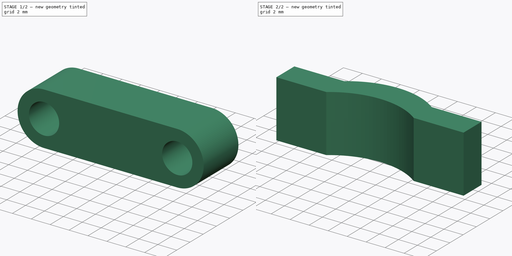
[diagram: build sequence overview — one tinted view per stage of 2, left to right]
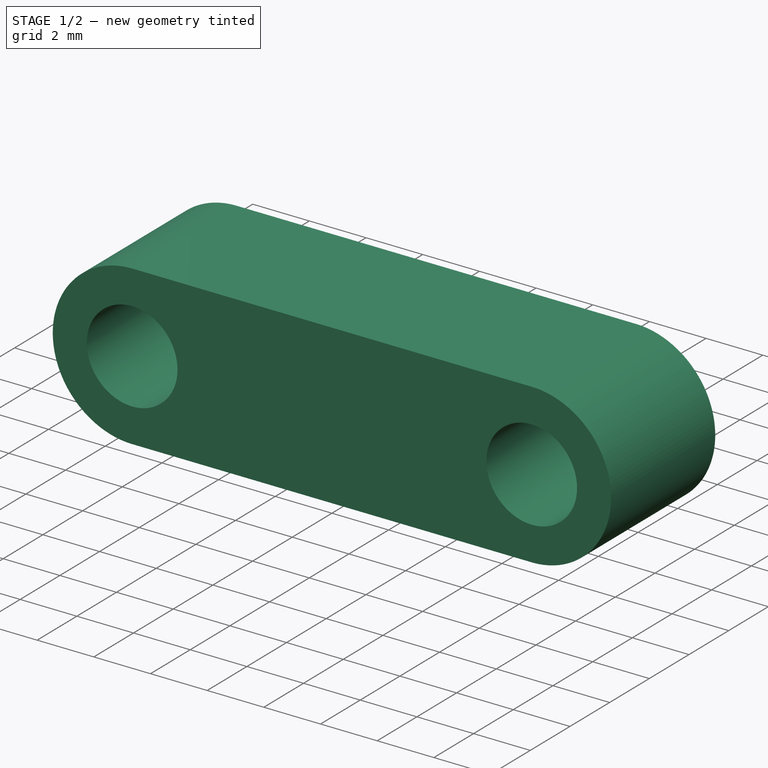
[diagram: stage 1 of 2 — iso view after this stage's code; geometry added in this stage tinted green]
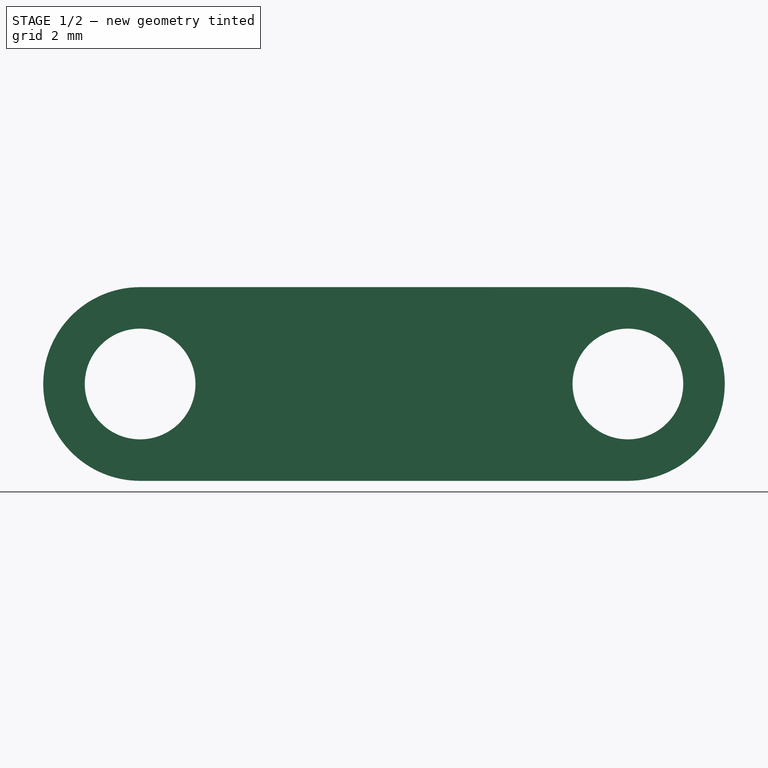
[diagram: stage 1 of 2 — front view after this stage's code; geometry added in this stage tinted green]
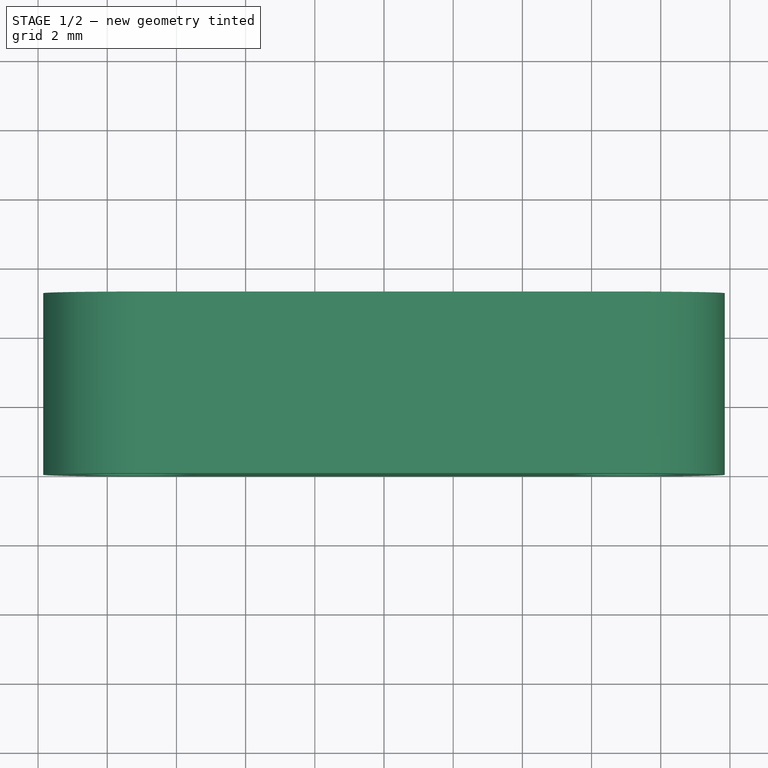
[diagram: stage 1 of 2 — top view after this stage's code; geometry added in this stage tinted green]
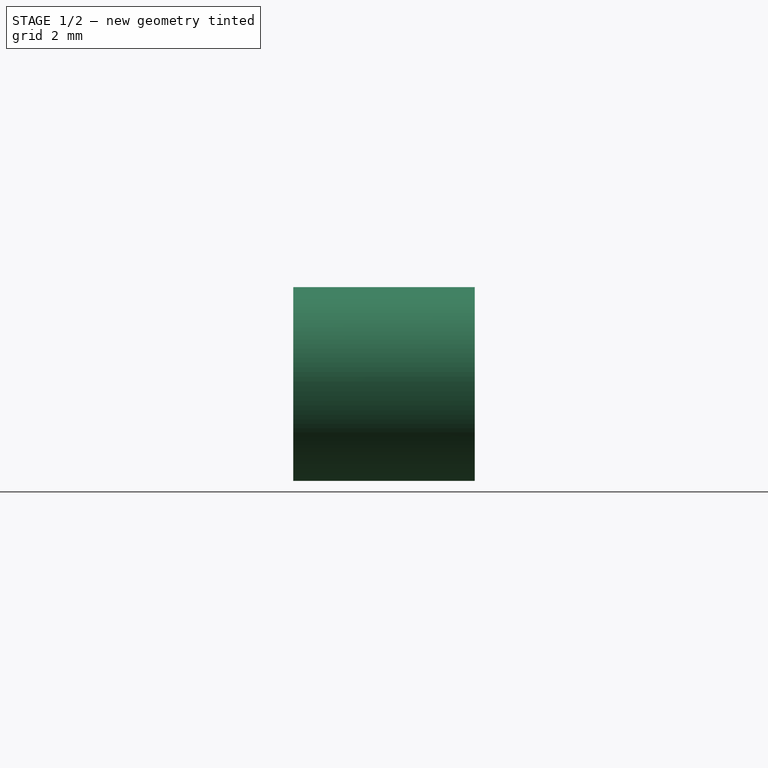
[diagram: stage 1 of 2 — right view after this stage's code; geometry added in this stage tinted green]
FCSTD DOCUMENT  (FreeCAD 1.0R39319 (Git))
Label: ZugentlastungKAZU_0442
License: All rights reserved
objects: Sketcher::SketchObject×2, PartDesign::Pad×2, PartDesign::Boolean×1, PartDesign::Body×1
note: 13 computed .brp shape members not serialized (recipe doc carries the construction recipe); baked Part::Feature solids carry a one-line shape summary decoded from their .brp

FEATURE [Sketcher::SketchObject] Sketch
  ArcFitTolerance = 1e-06
  AttachmentSupport = -> [XZ_Plane]
  FullyConstrained = true
  MakeInternals = false
  MapMode = 5
  Placement = pos=(0,0,0) rot=(1,0,0;1.5708rad)
  expr: Constraints[10] = .Constraints.Dia / 2 + 1.2 mm
  expr: Constraints[12] = .Constraints.Dia + 10.9 mm
  sketch-geometry (6):
    g0: ArcOfCircle CenterX=-7.05 CenterY=-1.6022e-12 CenterZ=0 NormalX=0 NormalY=0 NormalZ=1 AngleXU=0 Radius=2.8 StartAngle=1.5708 EndAngle=4.71239
    g1: ArcOfCircle CenterX=7.05 CenterY=-2.3269e-12 CenterZ=0 NormalX=0 NormalY=0 NormalZ=1 AngleXU=0 Radius=2.8 StartAngle=4.71239 EndAngle=7.85398
    g2: LineSegment StartX=-7.05 StartY=2.8 StartZ=0 EndX=7.05 EndY=2.8 EndZ=0
    g3: LineSegment StartX=-7.05 StartY=-2.8 StartZ=0 EndX=7.05 EndY=-2.8 EndZ=0
    g4: Circle CenterX=-7.05 CenterY=-1.6022e-12 CenterZ=0 NormalX=0 NormalY=0 NormalZ=1 AngleXU=0 Radius=1.6
    g5: Circle CenterX=7.05 CenterY=2.0986e-12 CenterZ=0 NormalX=0 NormalY=0 NormalZ=1 AngleXU=0 Radius=1.6
  constraints (13):
    c: Tangent(g0,g2) = 1.5708
    c: Tangent(g0,g3) = -1.5708
    c: Tangent(g1,g2) = 1.5708
    c: Tangent(g1,g3) = -1.5708
    c: Equal(g0,g1)
    c: Horizontal(g2)
    c: Symmetric(g0,g1,g-1)
    c: Equal(g4,g5)
    c: Diameter(g4) = 3.2  'Dia'
    c: Symmetric(g4,g5,g-1)
    c: Radius(g0) = 2.8
    c: Coincident(g4,g0)
    c: DistanceX(g0,g1) = 14.1
FEATURE [PartDesign::Pad] Pad
  Direction = (0,-1,2e-16)
  Length = 5.25
  Length2 = 10
  Placement = pos=(0,0,0) rot=(1,0,0;1.5708rad)
  Profile = -> Sketch
  ReferenceAxis = -> Sketch [N_Axis]
  Reversed = true
  Suppressed = false
  Type = 0
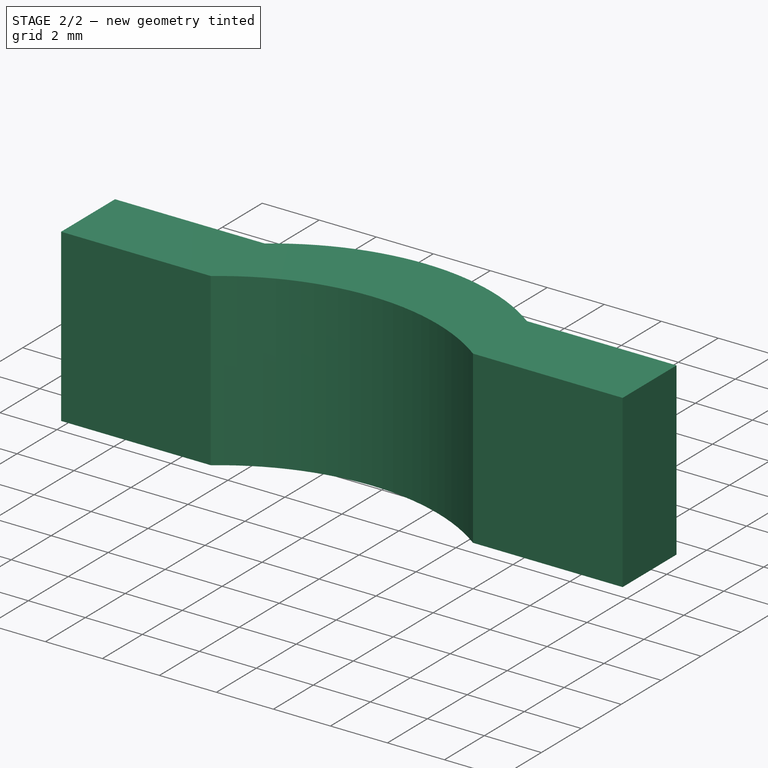
[diagram: stage 2 of 2 — iso view after this stage's code; geometry added in this stage tinted green]
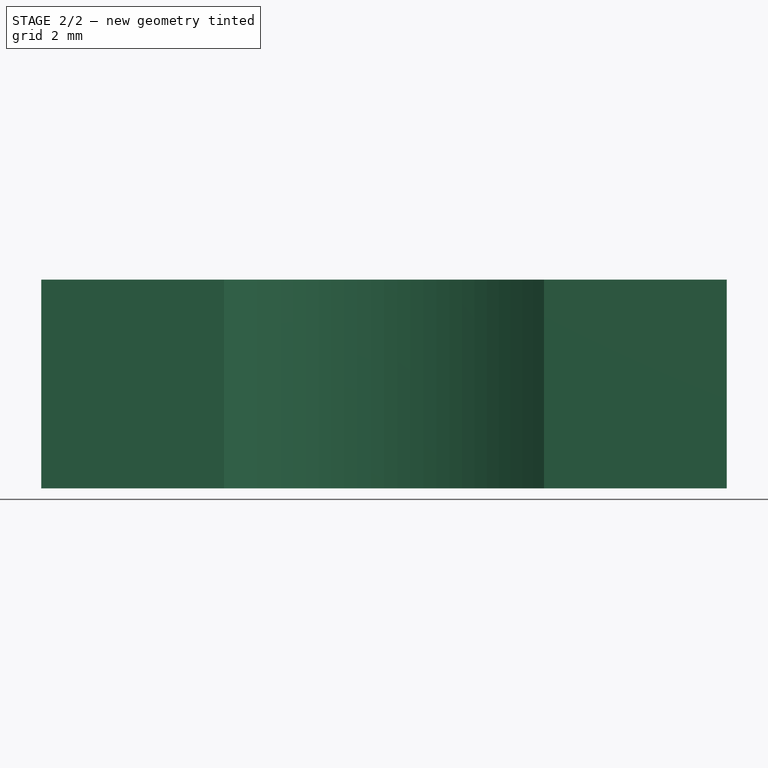
[diagram: stage 2 of 2 — front view after this stage's code; geometry added in this stage tinted green]
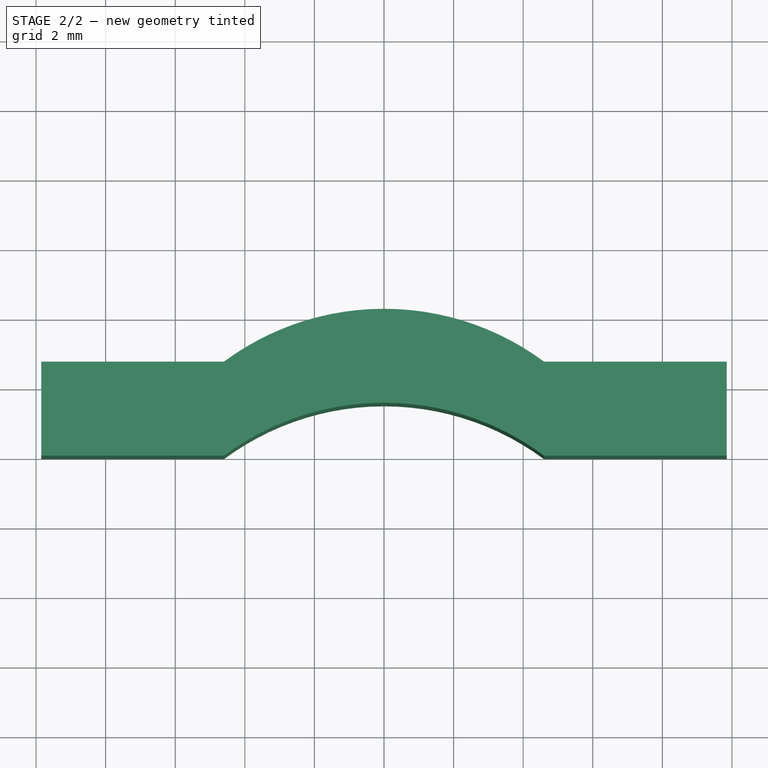
[diagram: stage 2 of 2 — top view after this stage's code; geometry added in this stage tinted green]
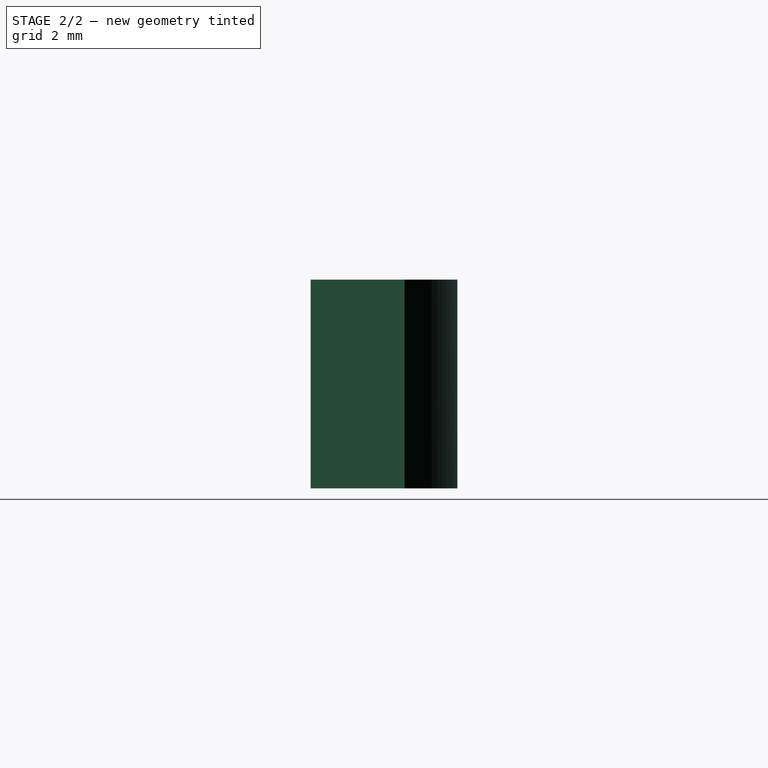
[diagram: stage 2 of 2 — right view after this stage's code; geometry added in this stage tinted green]
FEATURE [Sketcher::SketchObject] Sketch001
  ArcFitTolerance = 1e-06
  AttachmentSupport = -> [XY_Plane]
  ExternalGeometry = -> [Pad]
  FullyConstrained = true
  MakeInternals = false
  MapMode = 5
  expr: Constraints[19] = .Constraints.Width
  sketch-geometry (8):
    g0: LineSegment StartX=-9.85 StartY=-1.5161e-12 StartZ=0 EndX=-4.6 EndY=-7.02e-14 EndZ=0
    g1: ArcOfCircle CenterX=1.062e-13 CenterY=-6.2 CenterZ=0 NormalX=0 NormalY=0 NormalZ=1 AngleXU=0 Radius=7.7201 StartAngle=0.932477 EndAngle=2.20912
    g2: LineSegment StartX=4.6 StartY=-7.02e-14 StartZ=0 EndX=9.85 EndY=-7.02e-14 EndZ=0
    g3: LineSegment StartX=9.85 StartY=-7.02e-14 StartZ=0 EndX=9.85 EndY=2.7 EndZ=0
    g4: LineSegment StartX=9.85 StartY=2.7 StartZ=0 EndX=4.6 EndY=2.7 EndZ=0
    g5: ArcOfCircle CenterX=-1.254e-13 CenterY=-3.5 CenterZ=0 NormalX=0 NormalY=0 NormalZ=1 AngleXU=0 Radius=7.7201 StartAngle=0.932477 EndAngle=2.20912
    g6: LineSegment StartX=-4.6 StartY=2.7 StartZ=0 EndX=-9.85 EndY=2.7 EndZ=0
    g7: LineSegment StartX=-9.85 StartY=2.7 StartZ=0 EndX=-9.85 EndY=-1.5161e-12 EndZ=0
  constraints (22):
    c: Coincident(g-3,g0)
    c: Perpendicular(g2,g3) = 1.5708
    c: Perpendicular(g3,g4) = 1.5708
    c: Coincident(g5,g6)
    c: Coincident(g6,g7)
    c: Coincident(g7,g0)
    c: Vertical(g7)
    c: Coincident(g4,g5)
    c: Coincident(g2,g-4)
    c: Coincident(g0,g1)
    c: Horizontal(g0,g1)
    c: Vertical(g-1,g1)
    c: Vertical(g5,g-1)
    c: Coincident(g2,g1)
    c: Horizontal(g2)
    c: Horizontal(g6)
    c: Horizontal(g4,g5)
    c: DistanceY(g7,g7) = 2.7  'Width'
    c: DistanceX(g0,g1) = 9.2
    c: DistanceY(g1,g5) = 2.7
    c: Vertical(g5,g0)
    c: DistanceY(g5,g-1) = 3.5
FEATURE [PartDesign::Pad] Pad001
  Direction = (0,0,1)
  Length = 6
  Length2 = 10
  Midplane = true
  Profile = -> Sketch001
  ReferenceAxis = -> Sketch001 [N_Axis]
  Suppressed = false
  Type = 0
FEATURE [PartDesign::Boolean] Boolean
  Group = -> [Sketch,Sketch001,Pad001,Pad]
  Placement = pos=(0,1.4,-0.3) rot=(0,0,1;0rad)
  Suppressed = false
  Type = 2
  UsePlacement = true
FEATURE [PartDesign::Body] Body
  AllowCompound = false
  Group = -> [Boolean]
  Origin = -> Origin
  Tip = -> Boolean
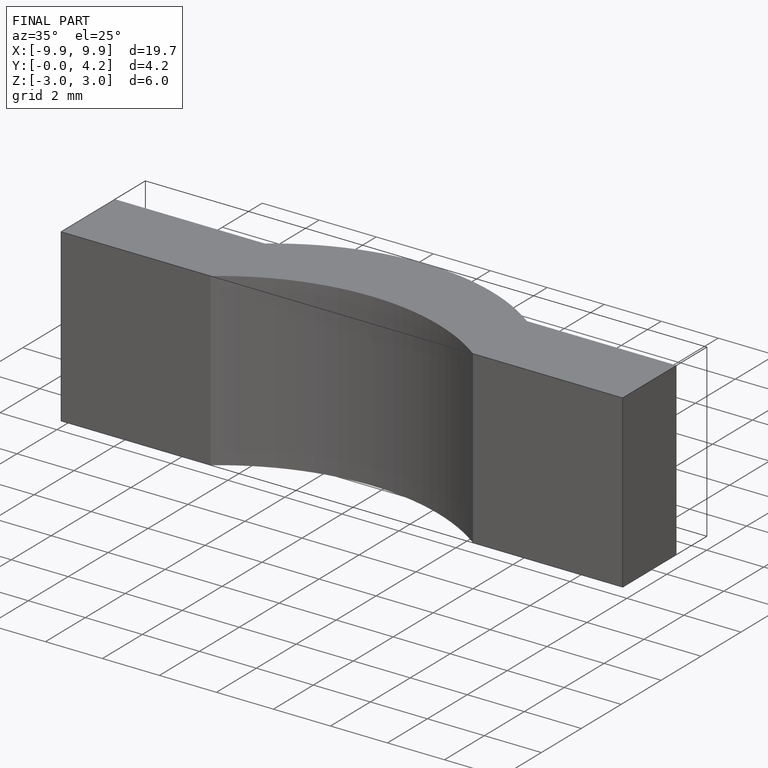
[diagram: finished part — iso view with bounding-box wireframe]
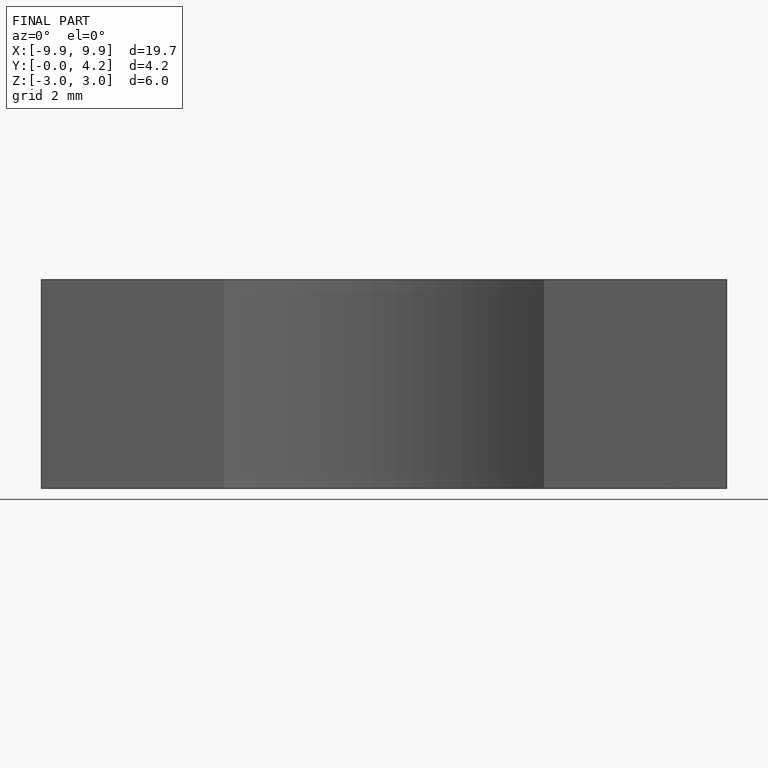
[diagram: finished part — front view with bounding-box wireframe]
